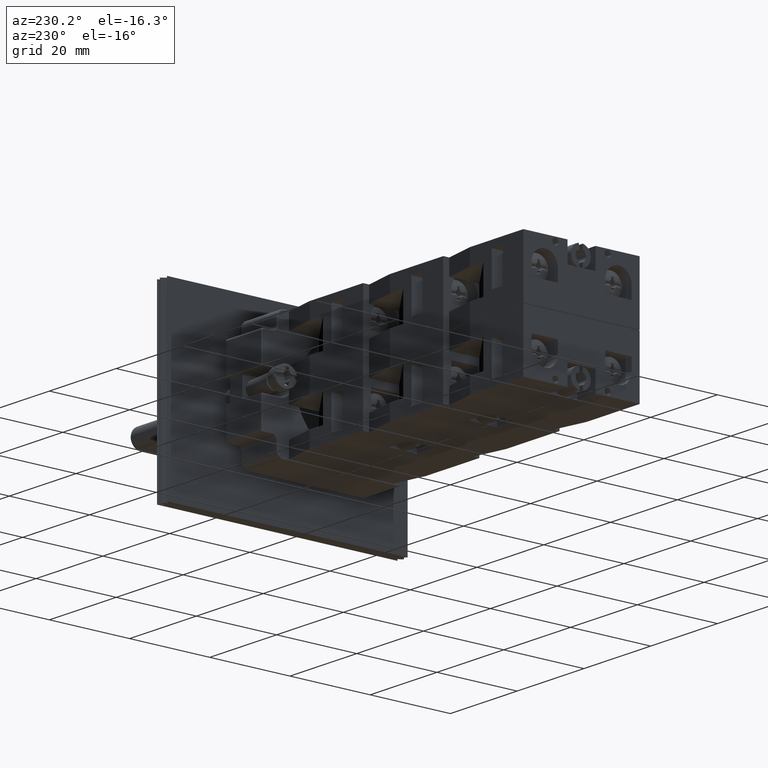
[diagram: clean part render]
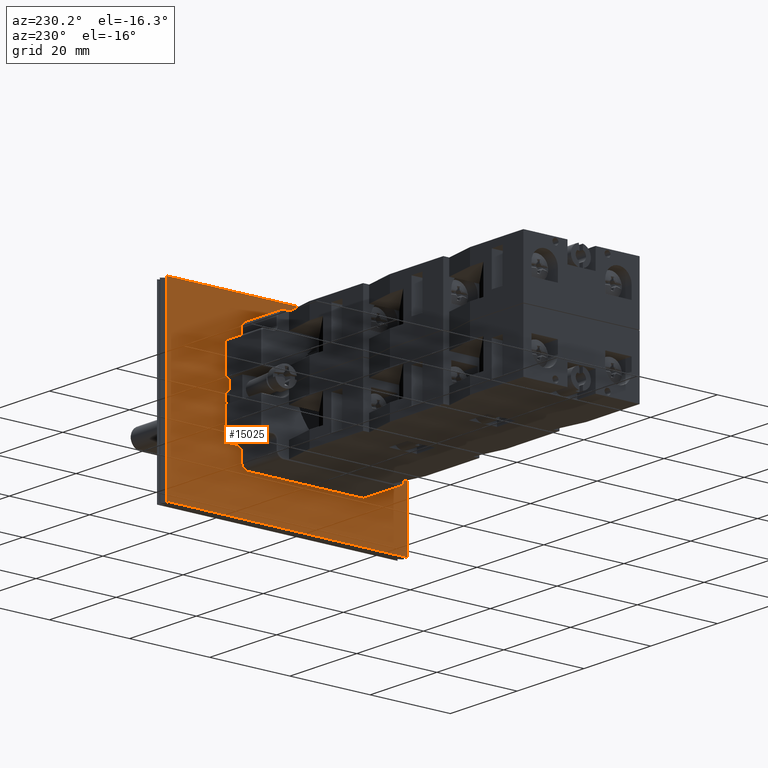
[diagram: same view with one face highlighted and labeled with its STEP entity id]
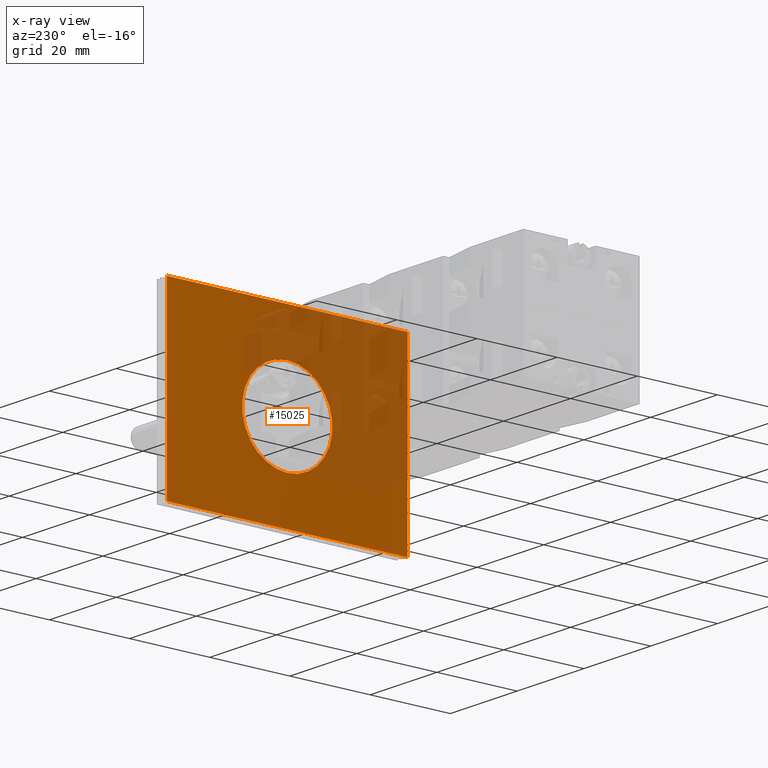
[diagram: x-ray of the same camera — body ghosted, the highlighted face saturated]
A machine part, auxiliary view. The second image highlights one B-rep face of the part: STEP entity #15025.
The next image is the same camera in x-ray: the body ghosted, the highlighted face saturated — about 39% of this face is hidden behind the body in this view.
In plain terms, the highlighted planar face has unit normal (-1, -0, 0).
Its self-contained STEP definition (entity closure, byte-faithful):
#14853=CARTESIAN_POINT('',(-15.704183619849179,-32.725398273954283,11.250000000000000));
#14854=VERTEX_POINT('',#14853);
#14855=CARTESIAN_POINT('',(-15.704183619849179,-32.725398273954283,22.500000000000000));
#14856=DIRECTION('',(1.0,0.0,0.0));
#14857=DIRECTION('',(0.0,0.0,1.0));
#14858=AXIS2_PLACEMENT_3D('',#14855,#14856,#14857);
#14859=CIRCLE('',#14858,11.250000000000000);
#14860=EDGE_CURVE('',#14854,#14854,#14859,.T.);
#14887=CARTESIAN_POINT('',(-15.704183619849179,-2.725398273954287,45.0));
#14888=VERTEX_POINT('',#14887);
#14907=CARTESIAN_POINT('',(-15.704183619849179,-2.725398273954287,0.0));
#14908=VERTEX_POINT('',#14907);
#14917=CARTESIAN_POINT('',(-15.704183619849179,-2.725398273954287,0.0));
#14918=DIRECTION('',(0.0,0.0,1.0));
#14919=VECTOR('',#14918,45.0);
#14920=LINE('',#14917,#14919);
#14921=EDGE_CURVE('',#14908,#14888,#14920,.T.);
#14971=CARTESIAN_POINT('',(-15.704183619849179,-62.725398273954283,45.0));
#14972=VERTEX_POINT('',#14971);
#14981=CARTESIAN_POINT('',(-15.704183619849179,-62.725398273954283,0.0));
#14982=VERTEX_POINT('',#14981);
#14983=CARTESIAN_POINT('',(-15.704183619849179,-62.725398273954283,0.0));
#14984=DIRECTION('',(0.0,0.0,1.0));
#14985=VECTOR('',#14984,45.0);
#14986=LINE('',#14983,#14985);
#14987=EDGE_CURVE('',#14982,#14972,#14986,.T.);
#15001=CARTESIAN_POINT('',(-15.704183619849179,-62.725398273954283,0.0));
#15002=DIRECTION('',(-1.0,0.0,0.0));
#15003=DIRECTION('',(0.0,0.0,1.0));
#15004=AXIS2_PLACEMENT_3D('',#15001,#15002,#15003);
#15005=PLANE('',#15004);
#15006=CARTESIAN_POINT('',(-15.704183619849179,-62.725398273954283,45.0));
#15007=DIRECTION('',(0.0,1.0,0.0));
#15008=VECTOR('',#15007,60.0);
#15009=LINE('',#15006,#15008);
#15010=EDGE_CURVE('',#14972,#14888,#15009,.T.);
#15011=ORIENTED_EDGE('',*,*,#15010,.T.);
#15012=ORIENTED_EDGE('',*,*,#14921,.F.);
#15013=CARTESIAN_POINT('',(-15.704183619849179,-2.725398273954287,0.0));
#15014=DIRECTION('',(0.0,-1.0,0.0));
#15015=VECTOR('',#15014,60.0);
#15016=LINE('',#15013,#15015);
#15017=EDGE_CURVE('',#14908,#14982,#15016,.T.);
#15018=ORIENTED_EDGE('',*,*,#15017,.T.);
#15019=ORIENTED_EDGE('',*,*,#14987,.T.);
#15020=EDGE_LOOP('',(#15011,#15012,#15018,#15019));
#15021=FACE_OUTER_BOUND('',#15020,.T.);
#15022=ORIENTED_EDGE('',*,*,#14860,.T.);
#15023=EDGE_LOOP('',(#15022));
#15024=FACE_BOUND('',#15023,.T.);
#15025=ADVANCED_FACE('',(#15021,#15024),#15005,.T.);